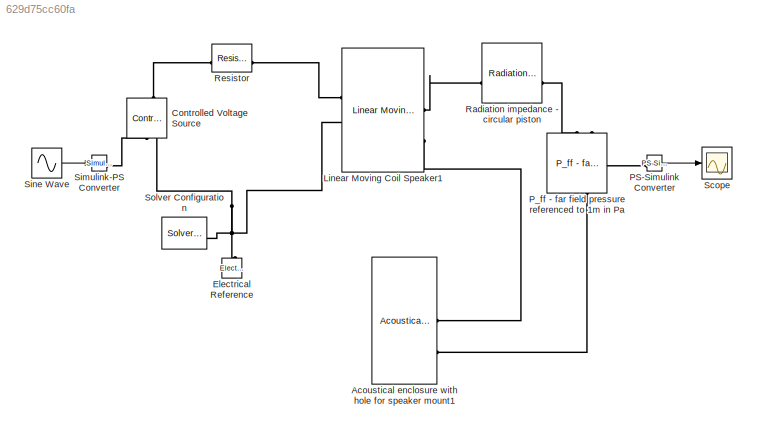
MODEL slx_629d75cc60fa
KIND model
CONFIG AbsTol = 1e-3
CONFIG EnableMultiTasking = off
CONFIG FixedStep = auto
CONFIG MaxStep = auto
CONFIG MinStep = auto
CONFIG RelTol = 1e-3
CONFIG SampleTimeConstraint = Unconstrained
CONFIG SolverName = VariableStepAuto
CONFIG StartTime = 0.0
CONFIG StopTime = 10.0
BLOCK [Reference] Acoustical enclosure with hole for speaker mount1  REF=acoustical_lib/Enclosures/Acoustical enclosure
with hole for
speaker mount
  SourceBlock = acoustical_lib/Enclosures/Acoustical enclosure\nwith hole for\nspeaker mount
  SourceProductName = Acoustical
  SourceType = Acoustical enclosure\nwith hole for\nspeaker mount
BLOCK [Reference] Controlled Voltage Source  REF=fl_lib/Electrical/Electrical Sources/Controlled Voltage
Source
  NameLocation = right
  SourceBlock = fl_lib/Electrical/Electrical Sources/Controlled Voltage\nSource
  SourceType = Controlled Voltage\nSource
BLOCK [Reference] Electrical Reference  REF=fl_lib/Electrical/Electrical Elements/Electrical Reference
  NameLocation = right
  SourceBlock = fl_lib/Electrical/Electrical Elements/Electrical Reference
  SourceType = Electrical Reference
BLOCK [Reference] Linear Moving Coil Speaker1  REF=acoustical_lib/Moving Coil Speakers/Linear Moving Coil
Speaker
  SourceBlock = acoustical_lib/Moving Coil Speakers/Linear Moving Coil\nSpeaker
  SourceProductName = Acoustical
  SourceType = Linear Moving Coil\nSpeaker
BLOCK [Reference] PS-Simulink Converter  REF=nesl_utility/PS-Simulink
Converter
  SourceBlock = nesl_utility/PS-Simulink\nConverter
  SourceType = PS-Simulink\nConverter
BLOCK [Reference] P_ff - far field pressure referenced to 1m in Pa  REF=acoustical_lib/Acoustical Elements/P_ff - far field
pressure referenced
to 1m in Pa
  NameLocation = left
  SourceBlock = acoustical_lib/Acoustical Elements/P_ff - far field\npressure referenced\nto 1m in Pa
  SourceProductName = Acoustical
  SourceType = P_ff - far field\npressure referenced\nto 1m in Pa
BLOCK [Reference] Radiation impedance - circular piston  REF=acoustical_lib/Acoustical Elements/Radiation impedance
- circular piston
  SourceBlock = acoustical_lib/Acoustical Elements/Radiation impedance\n- circular piston
  SourceProductName = Acoustical
  SourceType = Radiation impedance\n- circular piston
BLOCK [Reference] Resistor  REF=fl_lib/Electrical/Electrical Elements/Resistor
  SourceBlock = fl_lib/Electrical/Electrical Elements/Resistor
  SourceType = Resistor
BLOCK [Scope] Scope
  Floating = off
  NumInputPorts = 1
  ScopeSpecificationString = Simulink.scopes.TimeScopeBlockCfg('CurrentConfiguration', extmgr.ConfigurationSet(extmgr.Configuration('Core','General UI',true),extmgr.Configuration('Core','Source UI',true),extmgr.Configuration('Sources','WiredSimulink',true),extmgr.Configuration('Visuals','Time Domain',true),extmgr.Configuration('Tools','Plot Navigation',true),extmgr.Configuration('Tools','Measurements',true)),'Version','2019b'...<+1ch>
BLOCK [Reference] Simulink-PS Converter  REF=nesl_utility/Simulink-PS
Converter
  SourceBlock = nesl_utility/Simulink-PS\nConverter
  SourceType = Simulink-PS\nConverter
BLOCK [Sin] Sine Wave
  SampleTime = 0
BLOCK [Reference] Solver Configuration  REF=nesl_utility/Solver
Configuration
  SourceBlock = nesl_utility/Solver\nConfiguration
  SourceType = Solver\nConfiguration
LINE PS-Simulink Converter:1 -> Scope:1
LINE Sine Wave:1 -> Simulink-PS Converter:1
PLINE Acoustical enclosure with hole for speaker mount1:RConn1 -- Linear Moving Coil Speaker1:RConn2
PLINE Acoustical enclosure with hole for speaker mount1:RConn2 -- P_ff - far field pressure referenced to 1m in Pa:RConn1
PLINE Controlled Voltage Source:LConn1 -- Resistor:LConn1
PLINE Controlled Voltage Source:RConn1 -- Simulink-PS Converter:RConn1
PNET net1: Controlled Voltage Source:RConn2 -- Electrical Reference:LConn1 -- Linear Moving Coil Speaker1:LConn2 -- Solver Configuration:RConn1
PLINE Linear Moving Coil Speaker1:LConn1 -- Resistor:RConn1
PLINE Linear Moving Coil Speaker1:RConn1 -- Radiation impedance - circular piston:LConn1
PLINE PS-Simulink Converter:LConn1 -- P_ff - far field pressure referenced to 1m in Pa:LConn2
PLINE P_ff - far field pressure referenced to 1m in Pa:LConn1 -- Radiation impedance - circular piston:RConn1
note: PNET lines group multi-terminal physical nets as a canonical sorted terminal list (undirected conserving connections); 2-terminal nets keep the pairwise PLINE form
